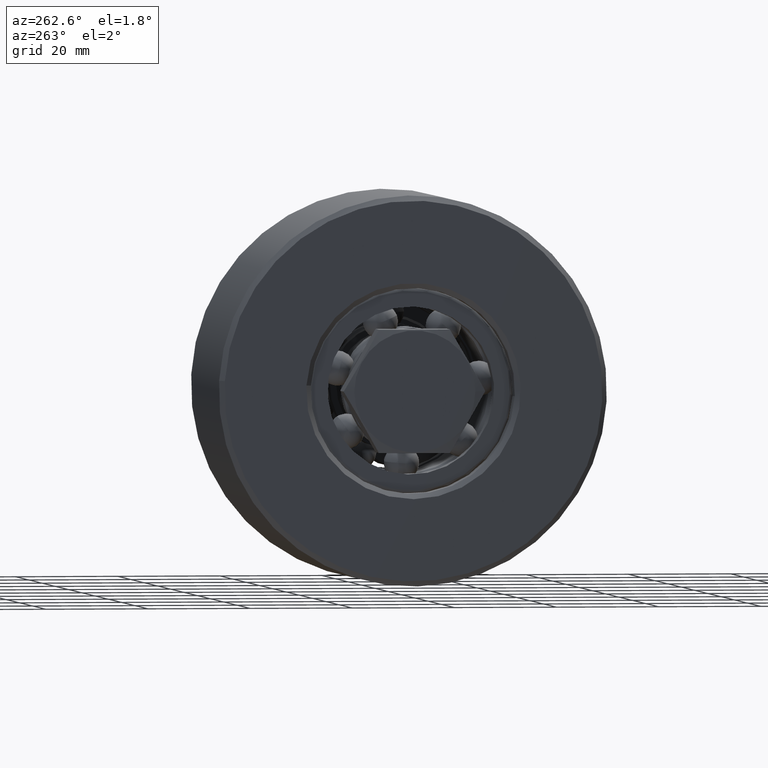
[diagram: clean part render]
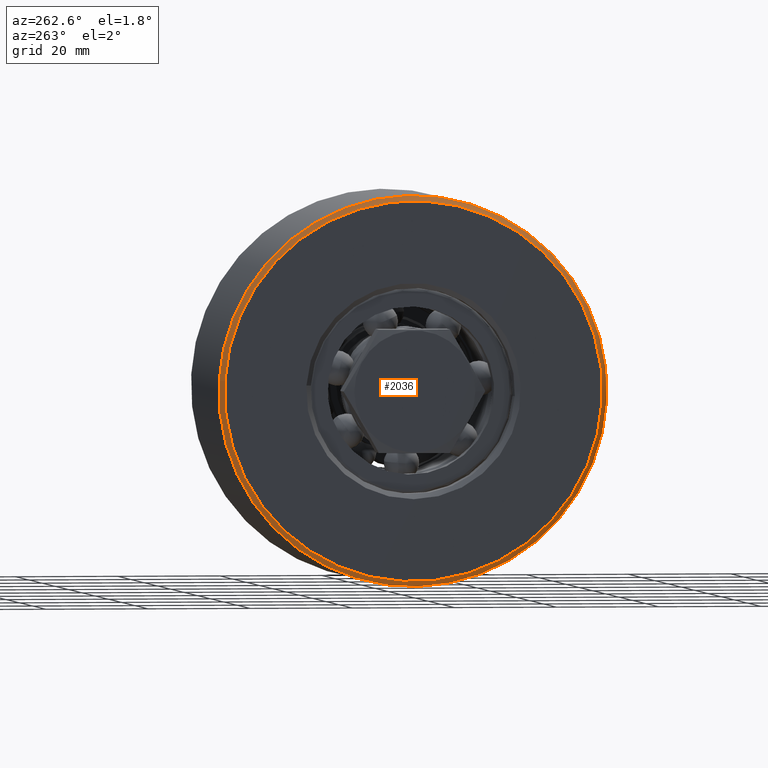
[diagram: same view with one face highlighted and labeled with its STEP entity id]
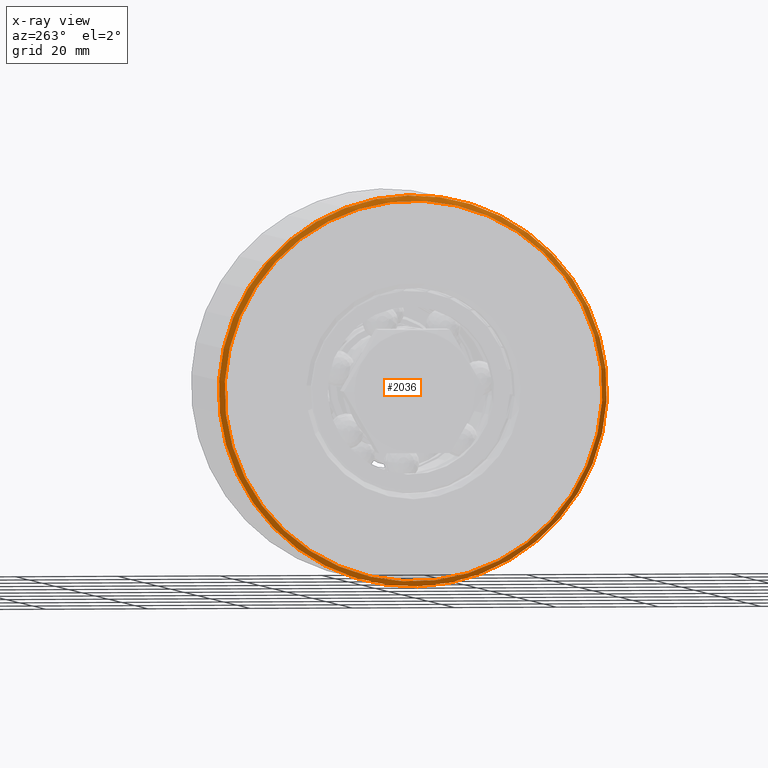
[diagram: x-ray of the same camera — body ghosted, the highlighted face saturated]
A machine part, auxiliary view. The second image highlights one B-rep face of the part: STEP entity #2036.
The next image is the same camera in x-ray: the body ghosted, the highlighted face saturated — about 0% of this face is hidden behind the body in this view.
In plain terms, the highlighted conical surface has half-angle 45 deg.
Its self-contained STEP definition (entity closure, byte-faithful):
#349=FACE_OUTER_BOUND('',#474,.T.);
#474=EDGE_LOOP('',(#1611,#1612,#1613,#1614,#1615));
#607=LINE('',#3478,#681);
#681=VECTOR('',#2817,37.5);
#751=CIRCLE('',#2371,37.);
#758=CIRCLE('',#2383,38.);
#759=CIRCLE('',#2384,38.);
#917=VERTEX_POINT('',#3452);
#924=VERTEX_POINT('',#3474);
#925=VERTEX_POINT('',#3475);
#1168=EDGE_CURVE('',#917,#917,#751,.T.);
#1178=EDGE_CURVE('',#924,#925,#758,.T.);
#1179=EDGE_CURVE('',#925,#924,#759,.T.);
#1180=EDGE_CURVE('',#924,#917,#607,.T.);
#1611=ORIENTED_EDGE('',*,*,#1178,.T.);
#1612=ORIENTED_EDGE('',*,*,#1179,.T.);
#1613=ORIENTED_EDGE('',*,*,#1180,.T.);
#1614=ORIENTED_EDGE('',*,*,#1168,.T.);
#1615=ORIENTED_EDGE('',*,*,#1180,.F.);
#1973=CONICAL_SURFACE('',#2382,37.5,0.785398163397448);
#2036=ADVANCED_FACE('',(#349),#1973,.T.);
#2371=AXIS2_PLACEMENT_3D('',#3453,#2786,#2787);
#2382=AXIS2_PLACEMENT_3D('',#3473,#2811,#2812);
#2383=AXIS2_PLACEMENT_3D('',#3476,#2813,#2814);
#2384=AXIS2_PLACEMENT_3D('',#3477,#2815,#2816);
#2786=DIRECTION('center_axis',(1.,0.,0.));
#2787=DIRECTION('ref_axis',(0.,-1.,0.));
#2811=DIRECTION('center_axis',(1.,0.,0.));
#2812=DIRECTION('ref_axis',(0.,-1.,0.));
#2813=DIRECTION('center_axis',(-1.,0.,0.));
#2814=DIRECTION('ref_axis',(0.,-1.,0.));
#2815=DIRECTION('center_axis',(-1.,0.,0.));
#2816=DIRECTION('ref_axis',(0.,-1.,0.));
#2817=DIRECTION('',(-0.707106781186547,-0.707106781186547,-8.65956056235493E-17));
#3452=CARTESIAN_POINT('',(-22.,37.,4.53119315684521E-15));
#3453=CARTESIAN_POINT('Origin',(-22.,0.,0.));
#3473=CARTESIAN_POINT('Origin',(-21.5,0.,0.));
#3474=CARTESIAN_POINT('',(-21.,38.,-4.65365783675994E-15));
#3475=CARTESIAN_POINT('',(-21.,-38.,-4.65365783675994E-15));
#3476=CARTESIAN_POINT('Origin',(-21.,0.,0.));
#3477=CARTESIAN_POINT('Origin',(-21.,0.,0.));
#3478=CARTESIAN_POINT('',(-21.5,37.5,4.59242549680258E-15));